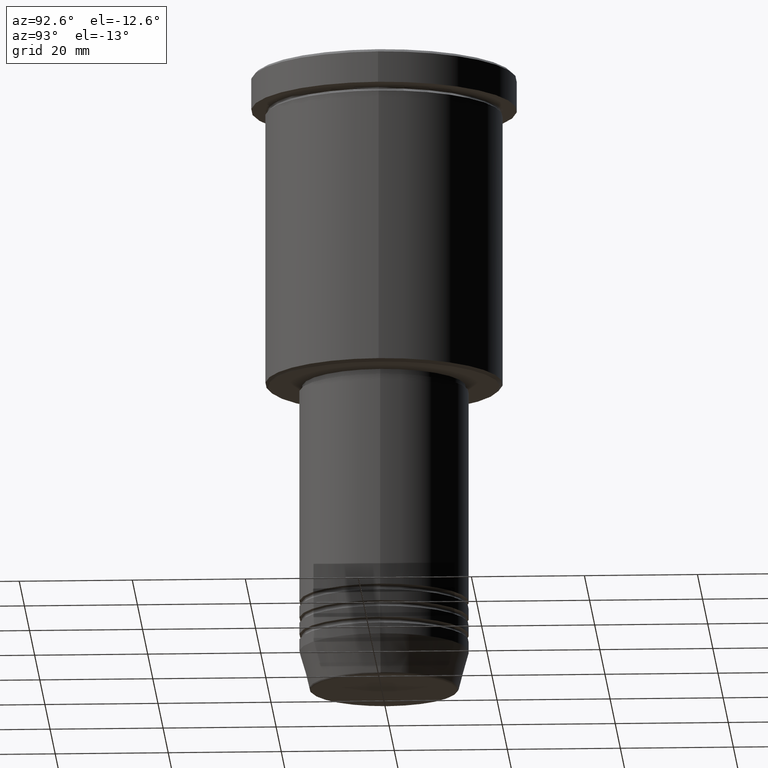
[diagram: clean part render]
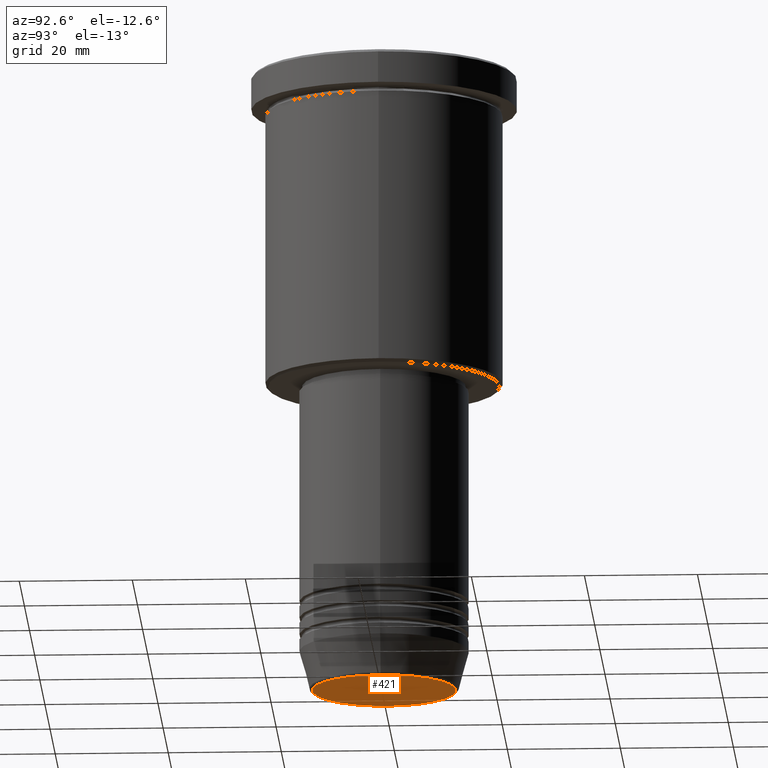
[diagram: same view with one face highlighted and labeled with its STEP entity id]
A machine part, auxiliary view. The second image highlights one B-rep face of the part: STEP entity #421.
In plain terms, the highlighted planar face has unit normal (0, -0, 1).
Its self-contained STEP definition (entity closure, byte-faithful):
#6 = FACE_OUTER_BOUND ( 'NONE', #1089, .T. ) ;
#31 = CARTESIAN_POINT ( 'NONE',  ( -12.74069215899265828, 1.589857736427681035E-15, -111.0000000000000000 ) ) ;
#47 = DIRECTION ( 'NONE',  ( 0.000000000000000000, 0.000000000000000000, -1.000000000000000000 ) ) ;
#75 = ORIENTED_EDGE ( 'NONE', *, *, #813, .T. ) ;
#96 = PLANE ( 'NONE',  #1006 ) ;
#158 = DIRECTION ( 'NONE',  ( 1.000000000000000000, 0.000000000000000000, 0.000000000000000000 ) ) ;
#273 = VERTEX_POINT ( 'NONE', #365 ) ;
#332 = DIRECTION ( 'NONE',  ( 0.000000000000000000, 0.000000000000000000, -1.000000000000000000 ) ) ;
#338 = CIRCLE ( 'NONE', #477, 12.74069215899265828 ) ;
#365 = CARTESIAN_POINT ( 'NONE',  ( 12.74069215899265828, 0.000000000000000000, -111.0000000000000000 ) ) ;
#421 = ADVANCED_FACE ( 'NONE', ( #6 ), #96, .F. ) ;
#466 = DIRECTION ( 'NONE',  ( 0.000000000000000000, -0.000000000000000000, 1.000000000000000000 ) ) ;
#477 = AXIS2_PLACEMENT_3D ( 'NONE', #953, #47, #1157 ) ;
#553 = EDGE_CURVE ( 'NONE', #273, #705, #338, .T. ) ;
#560 = ORIENTED_EDGE ( 'NONE', *, *, #553, .T. ) ;
#577 = CARTESIAN_POINT ( 'NONE',  ( 0.000000000000000000, 0.000000000000000000, -111.0000000000000000 ) ) ;
#581 = CARTESIAN_POINT ( 'NONE',  ( 0.000000000000000000, 0.000000000000000000, -111.0000000000000000 ) ) ;
#666 = CIRCLE ( 'NONE', #722, 12.74069215899265828 ) ;
#705 = VERTEX_POINT ( 'NONE', #31 ) ;
#722 = AXIS2_PLACEMENT_3D ( 'NONE', #581, #332, #158 ) ;
#813 = EDGE_CURVE ( 'NONE', #705, #273, #666, .T. ) ;
#953 = CARTESIAN_POINT ( 'NONE',  ( 0.000000000000000000, 0.000000000000000000, -111.0000000000000000 ) ) ;
#1006 = AXIS2_PLACEMENT_3D ( 'NONE', #577, #466, #1128 ) ;
#1089 = EDGE_LOOP ( 'NONE', ( #560, #75 ) ) ;
#1128 = DIRECTION ( 'NONE',  ( 1.000000000000000000, 0.000000000000000000, 0.000000000000000000 ) ) ;
#1157 = DIRECTION ( 'NONE',  ( 1.000000000000000000, 0.000000000000000000, 0.000000000000000000 ) ) ;